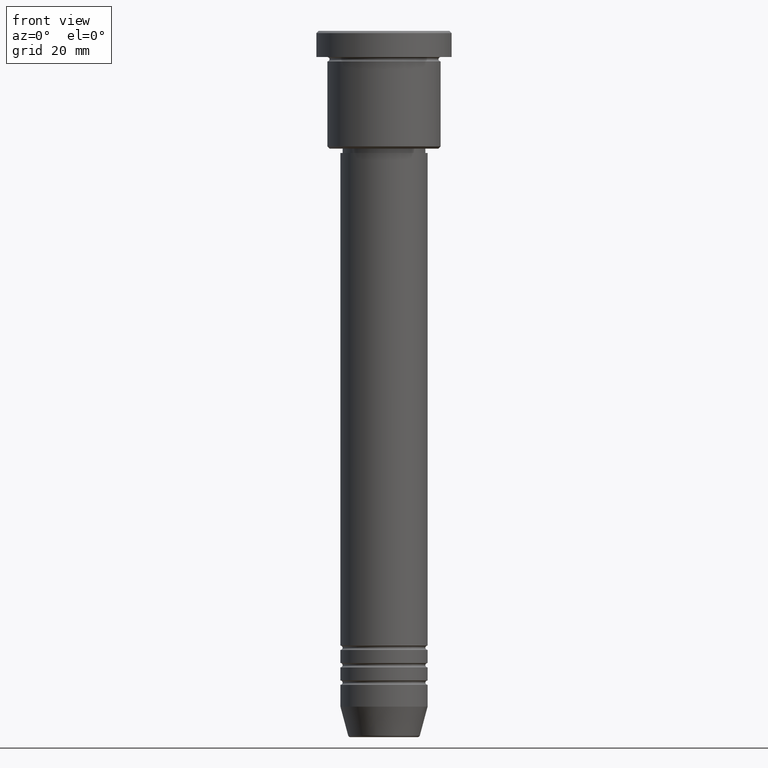
[diagram: clean part render]
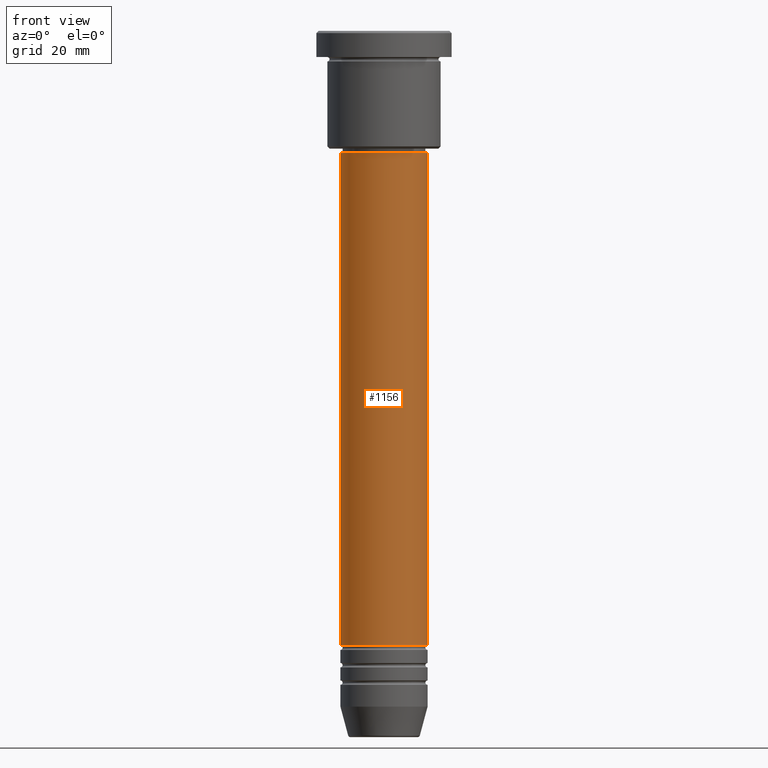
[diagram: same view with one face highlighted and labeled with its STEP entity id]
A machine part, front view. The second image highlights one B-rep face of the part: STEP entity #1156.
In plain terms, the highlighted cylindrical surface (partial cylindrical patch) has radius 10 mm, axis along (-0, -0, 1).
Its self-contained STEP definition (entity closure, byte-faithful):
#41 = DIRECTION ( 'NONE',  ( -0.000000000000000000, -0.000000000000000000, 1.000000000000000000 ) ) ;
#54 = CARTESIAN_POINT ( 'NONE',  ( 10.00000000000000178, 0.000000000000000000, -140.9999999999999147 ) ) ;
#69 = VERTEX_POINT ( 'NONE', #435 ) ;
#89 = VERTEX_POINT ( 'NONE', #54 ) ;
#173 = CIRCLE ( 'NONE', #1000, 10.00000000000000178 ) ;
#181 = DIRECTION ( 'NONE',  ( -0.000000000000000000, -0.000000000000000000, 1.000000000000000000 ) ) ;
#185 = EDGE_LOOP ( 'NONE', ( #775, #351, #317, #253 ) ) ;
#253 = ORIENTED_EDGE ( 'NONE', *, *, #427, .F. ) ;
#266 = CYLINDRICAL_SURFACE ( 'NONE', #645, 10.00000000000000000 ) ;
#308 = LINE ( 'NONE', #1044, #675 ) ;
#317 = ORIENTED_EDGE ( 'NONE', *, *, #889, .T. ) ;
#351 = ORIENTED_EDGE ( 'NONE', *, *, #1061, .T. ) ;
#418 = DIRECTION ( 'NONE',  ( 1.000000000000000000, 0.000000000000000000, 0.000000000000000000 ) ) ;
#427 = EDGE_CURVE ( 'NONE', #685, #69, #965, .T. ) ;
#435 = CARTESIAN_POINT ( 'NONE',  ( 9.999999999999998224, 0.000000000000000000, -28.00000000000001776 ) ) ;
#448 = AXIS2_PLACEMENT_3D ( 'NONE', #577, #945, #418 ) ;
#577 = CARTESIAN_POINT ( 'NONE',  ( 0.000000000000000000, 0.000000000000000000, -28.00000000000001776 ) ) ;
#645 = AXIS2_PLACEMENT_3D ( 'NONE', #915, #181, #817 ) ;
#675 = VECTOR ( 'NONE', #41, 1000.000000000000000 ) ;
#685 = VERTEX_POINT ( 'NONE', #824 ) ;
#736 = CARTESIAN_POINT ( 'NONE',  ( -10.00000000000000178, 1.224646799147353454E-15, -140.9999999999999147 ) ) ;
#775 = ORIENTED_EDGE ( 'NONE', *, *, #1020, .F. ) ;
#781 = LINE ( 'NONE', #993, #967 ) ;
#816 = VERTEX_POINT ( 'NONE', #736 ) ;
#817 = DIRECTION ( 'NONE',  ( 1.000000000000000000, 0.000000000000000000, 0.000000000000000000 ) ) ;
#824 = CARTESIAN_POINT ( 'NONE',  ( -9.999999999999998224, 1.224646799147353256E-15, -28.00000000000001776 ) ) ;
#879 = DIRECTION ( 'NONE',  ( -0.000000000000000000, -0.000000000000000000, 1.000000000000000000 ) ) ;
#889 = EDGE_CURVE ( 'NONE', #89, #69, #308, .T. ) ;
#915 = CARTESIAN_POINT ( 'NONE',  ( 0.000000000000000000, 0.000000000000000000, 0.000000000000000000 ) ) ;
#945 = DIRECTION ( 'NONE',  ( -0.000000000000000000, -0.000000000000000000, 1.000000000000000000 ) ) ;
#965 = CIRCLE ( 'NONE', #448, 9.999999999999998224 ) ;
#967 = VECTOR ( 'NONE', #1145, 1000.000000000000000 ) ;
#981 = CARTESIAN_POINT ( 'NONE',  ( 0.000000000000000000, 0.000000000000000000, -140.9999999999999147 ) ) ;
#988 = DIRECTION ( 'NONE',  ( 1.000000000000000000, 0.000000000000000000, 0.000000000000000000 ) ) ;
#993 = CARTESIAN_POINT ( 'NONE',  ( -10.00000000000000000, 1.224646799147353256E-15, 0.000000000000000000 ) ) ;
#1000 = AXIS2_PLACEMENT_3D ( 'NONE', #981, #879, #988 ) ;
#1020 = EDGE_CURVE ( 'NONE', #816, #685, #781, .T. ) ;
#1044 = CARTESIAN_POINT ( 'NONE',  ( 10.00000000000000000, 0.000000000000000000, 0.000000000000000000 ) ) ;
#1061 = EDGE_CURVE ( 'NONE', #816, #89, #173, .T. ) ;
#1145 = DIRECTION ( 'NONE',  ( -0.000000000000000000, -0.000000000000000000, 1.000000000000000000 ) ) ;
#1156 = ADVANCED_FACE ( 'NONE', ( #1181 ), #266, .T. ) ;
#1181 = FACE_OUTER_BOUND ( 'NONE', #185, .T. ) ;